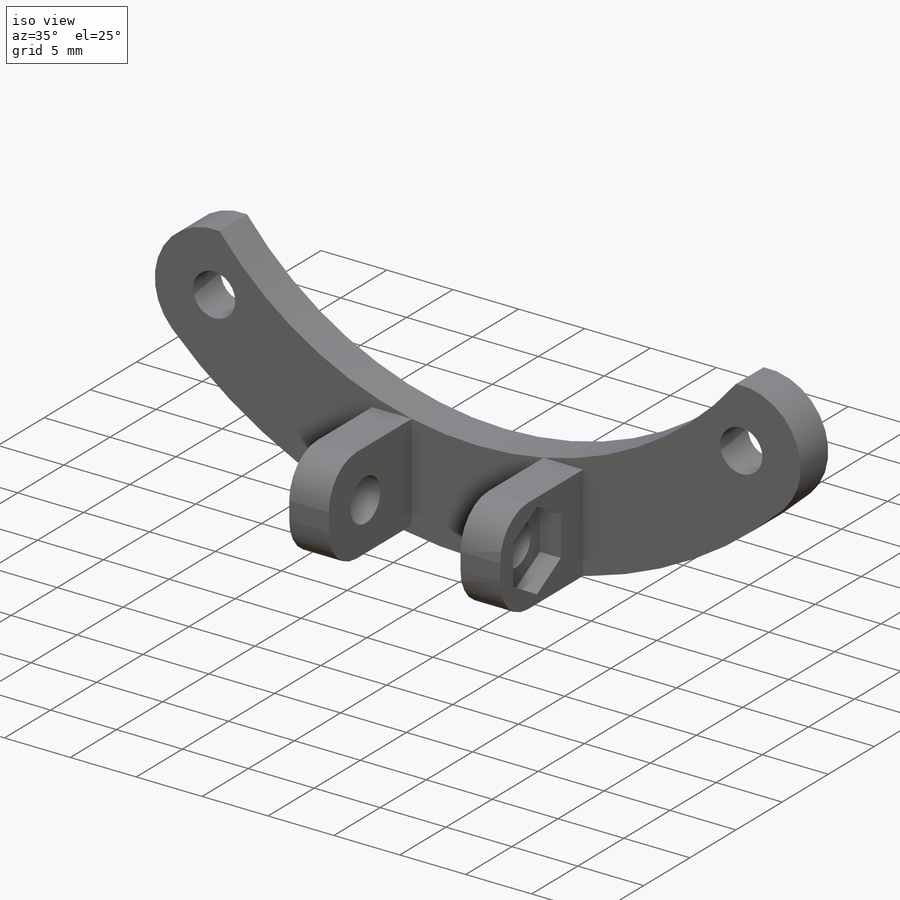
[diagram: iso view]
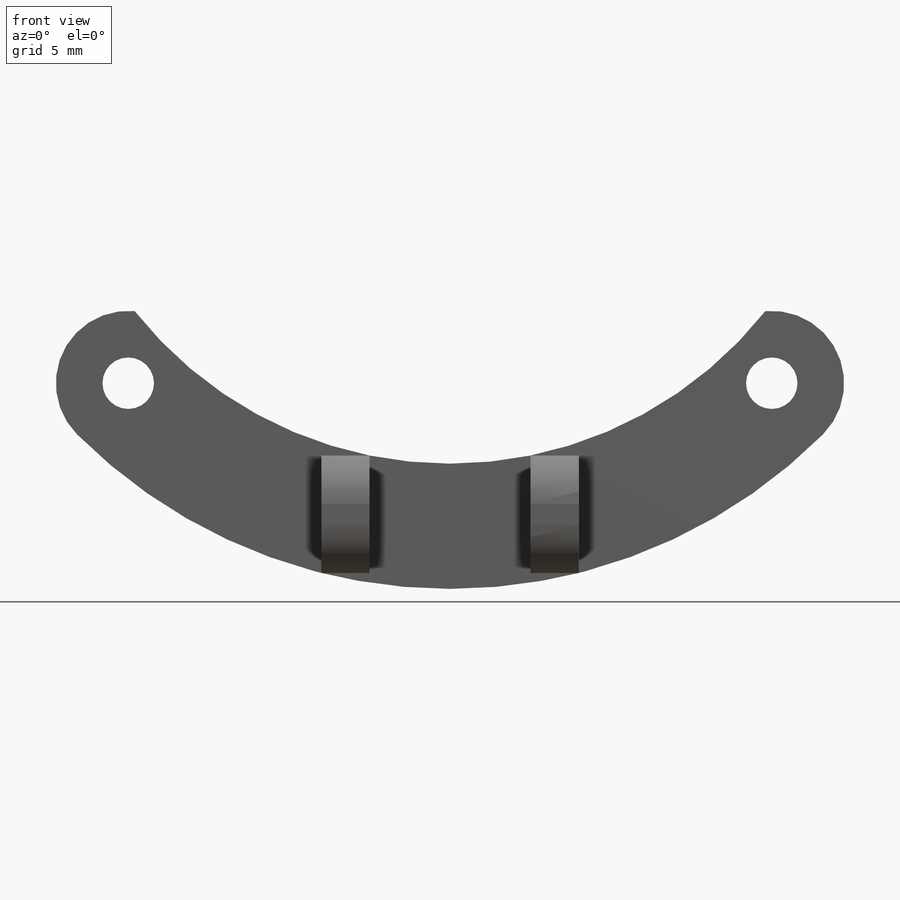
[diagram: front view]
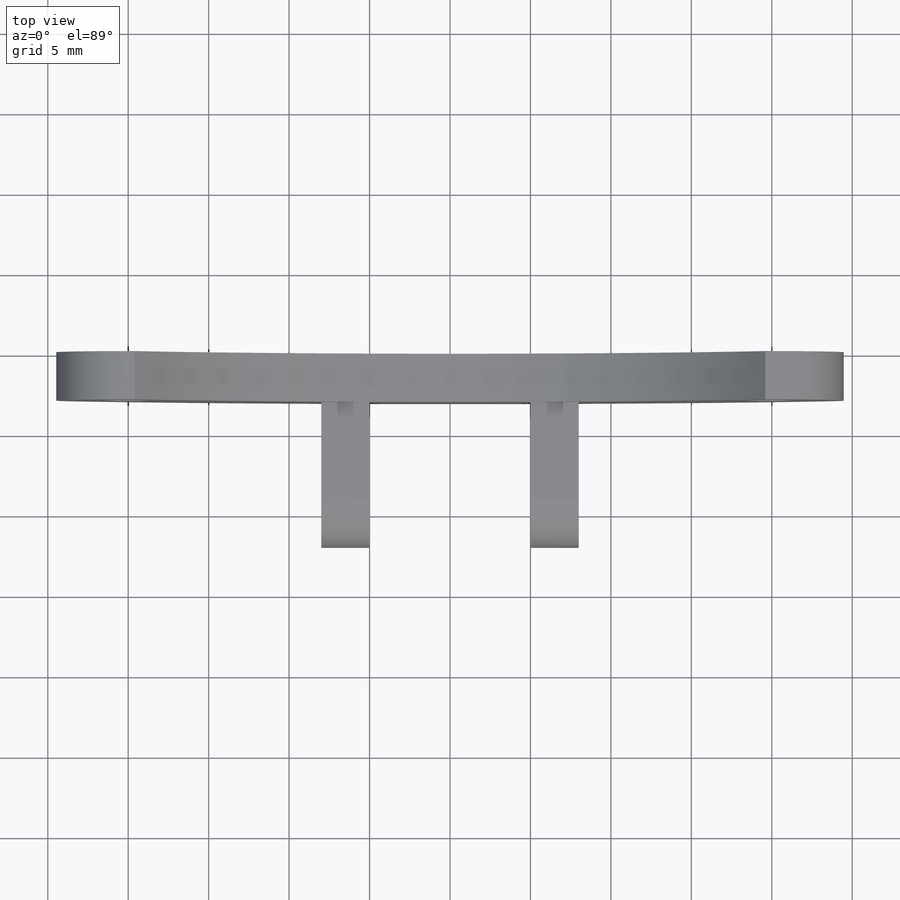
[diagram: top view]
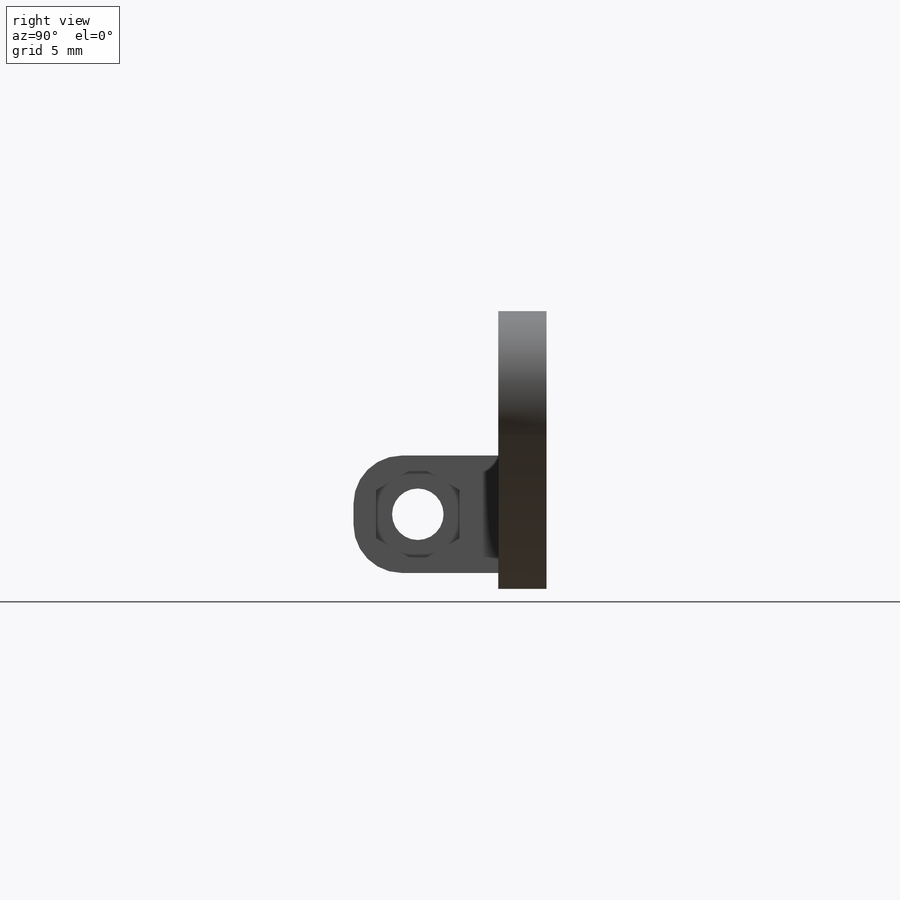
[diagram: right view]
SOLIDWORKS PART (.sldprt)
format: sldprt  version: not decoded by parser v0  size: 231,936 bytes
history: native  units: mm
features: sketch x4, plane x3, extrude x2, cut_extrude x2, material x1, fillet x1 (+8 scaffold rows collapsed)
feature tree (21):
  scaffold x8  (default folders/planes/origin — collapsed)
  material  "Material <sin especificar>"
  plane  "Alzado"
  plane  "Planta"
  plane  "Vista lateral"
  sketch  "Croquis1"  dims[c1.D1=3.2mm c1.D2=9.0mm c1.D4=3.2mm c1.D5=3.2mm c2.D4=50.0mm c2.D6=3.2mm c2.D7=3.2mm c2.D8=~68.874109mm c2.D10=25.0mm c3.D4=28.0mm c3.D5=~19.595918mm c4.D5=90.0deg c4.D6=~39.59798mm c5.D5=40.0mm c5.D6=20.0mm c5.D7=20.0mm c5.D8=16.0mm c5.D9=12.0mm c5.D10=29.0mm c5.D11=~7.496277mm c5.D12=~18.124677mm c6.D11=~7.189965mm c6.D12=~3.331536mm c7.D11=3.0mm c7.D12=~7.265765mm c7.D3=2.0]
  extrude  "Saliente-Extruir1"  Depth=3mm
  sketch  "Croquis2"  dims[c1.D1=~7.328359mm c1.D2=~2.735594mm c2.D1=3.0mm c2.D2=~7.178672mm c2.D3=~3.201567mm c3.D2=3.0mm]
  extrude  "Saliente-Extruir2"  Depth=9mm
  sketch  "Croquis3"  dims[c1.D1=3.2mm c1.D2=3.2mm c1.D3=3.2mm c2.D2=3.65mm c2.D3=5.0mm]
  cut_extrude  "Cortar-Extruir1"  [1 undecoded]
  sketch  "Croquis4"  dims[D1=6.0mm]
  cut_extrude  "Cortar-Extruir2"  Depth=1.6mm
  fillet  "Redondeo1"  Radius=3mm
decode coverage: 8 of 9 modeling features carry decoded parameters
note: ~ marks probable driven/reference dimensions
note: 1 parameter value undecoded
note: suppression state not decoded; provenance and decode notes live in map.json
